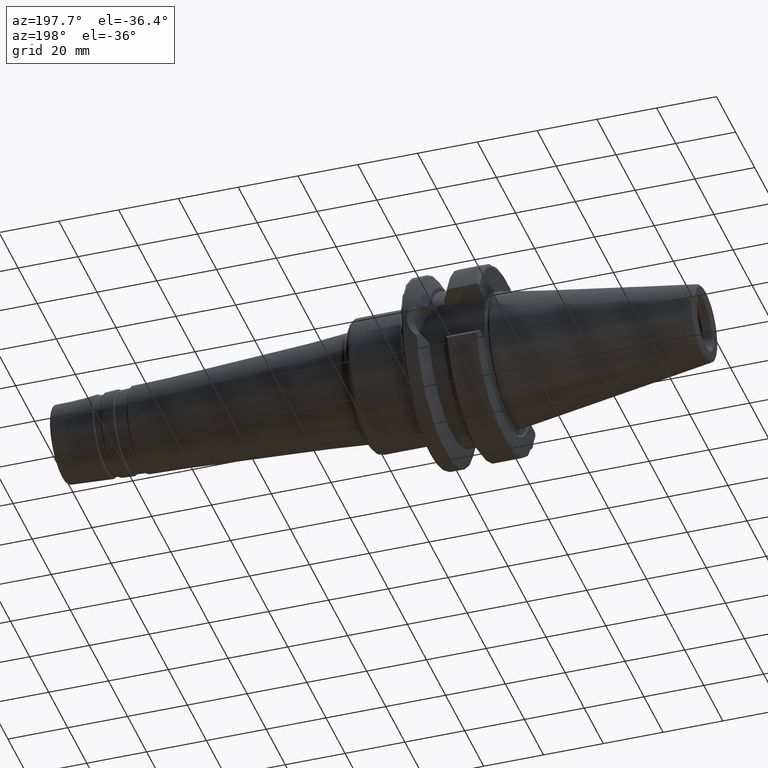
[diagram: clean part render]
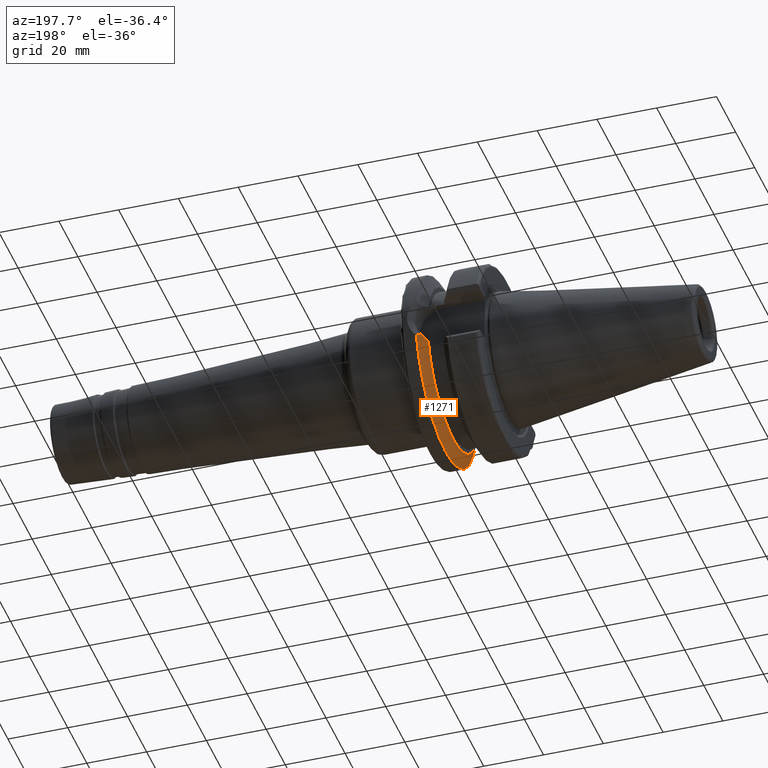
[diagram: same view with one face highlighted and labeled with its STEP entity id]
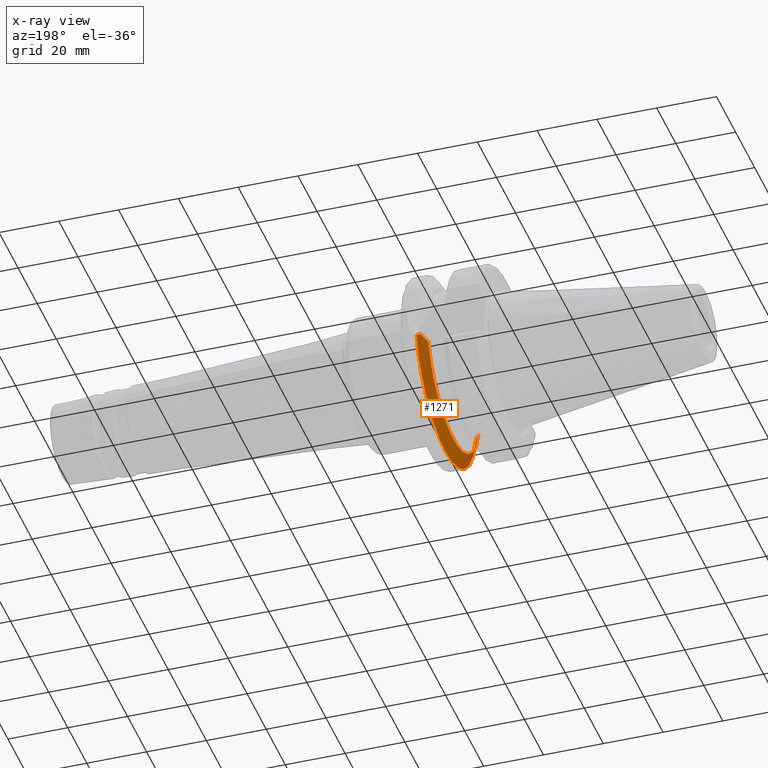
[diagram: x-ray of the same camera — body ghosted, the highlighted face saturated]
A machine part, auxiliary view. The second image highlights one B-rep face of the part: STEP entity #1271.
The next image is the same camera in x-ray: the body ghosted, the highlighted face saturated — about 1% of this face is hidden behind the body in this view.
In plain terms, the highlighted conical surface has half-angle 60.125 deg.
Its self-contained STEP definition (entity closure, byte-faithful):
#27=B_SPLINE_CURVE_WITH_KNOTS('',3,(#2091,#2092,#2093,#2094,#2095,#2096,
#2097,#2098,#2099,#2100,#2101,#2102,#2103),.UNSPECIFIED.,.F.,.F.,(4,3,3,
3,4),(0.,0.0663857987262874,0.104853023511296,0.177953491129426,0.209498394876945),
 .UNSPECIFIED.);
#33=B_SPLINE_CURVE_WITH_KNOTS('',3,(#2163,#2164,#2165,#2166,#2167,#2168),
 .UNSPECIFIED.,.F.,.F.,(4,2,4),(3.3443816511031,3.62699288756974,3.70848737461385),
 .UNSPECIFIED.);
#34=B_SPLINE_CURVE_WITH_KNOTS('',3,(#2172,#2173,#2174,#2175,#2176,#2177),
 .UNSPECIFIED.,.F.,.F.,(4,2,4),(1.4642102789956,1.54570476603971,1.82831600250635),
 .UNSPECIFIED.);
#35=B_SPLINE_CURVE_WITH_KNOTS('',3,(#2178,#2179,#2180,#2181,#2182,#2183,
#2184,#2185,#2186,#2187,#2188,#2189,#2190),.UNSPECIFIED.,.F.,.F.,(4,3,3,
3,4),(1.38777878078145E-17,0.0731680095135469,0.104649820620959,0.171142802075839,
0.209508940919759),.UNSPECIFIED.);
#244=CONICAL_SURFACE('',#1423,29.2970358274569,1.04937921276159);
#287=FACE_OUTER_BOUND('',#372,.T.);
#372=EDGE_LOOP('',(#960,#961,#962,#963,#964,#965));
#469=CIRCLE('',#1420,31.5000000000001);
#472=CIRCLE('',#1424,27.0940716549138);
#549=VERTEX_POINT('',#2089);
#550=VERTEX_POINT('',#2090);
#556=VERTEX_POINT('',#2147);
#558=VERTEX_POINT('',#2162);
#559=VERTEX_POINT('',#2169);
#560=VERTEX_POINT('',#2171);
#695=EDGE_CURVE('',#549,#550,#27,.T.);
#702=EDGE_CURVE('',#550,#556,#469,.T.);
#706=EDGE_CURVE('',#549,#558,#33,.T.);
#707=EDGE_CURVE('',#558,#559,#472,.T.);
#708=EDGE_CURVE('',#559,#560,#34,.T.);
#709=EDGE_CURVE('',#556,#560,#35,.T.);
#960=ORIENTED_EDGE('',*,*,#695,.F.);
#961=ORIENTED_EDGE('',*,*,#706,.T.);
#962=ORIENTED_EDGE('',*,*,#707,.T.);
#963=ORIENTED_EDGE('',*,*,#708,.T.);
#964=ORIENTED_EDGE('',*,*,#709,.F.);
#965=ORIENTED_EDGE('',*,*,#702,.F.);
#1271=ADVANCED_FACE('',(#287),#244,.T.);
#1420=AXIS2_PLACEMENT_3D('',#2148,#1686,#1687);
#1423=AXIS2_PLACEMENT_3D('',#2161,#1692,#1693);
#1424=AXIS2_PLACEMENT_3D('',#2170,#1694,#1695);
#1686=DIRECTION('center_axis',(1.,0.,0.));
#1687=DIRECTION('ref_axis',(0.,0.,-1.));
#1692=DIRECTION('center_axis',(1.,0.,0.));
#1693=DIRECTION('ref_axis',(0.,1.,0.));
#1694=DIRECTION('center_axis',(1.,0.,0.));
#1695=DIRECTION('ref_axis',(0.,0.,-1.));
#2089=CARTESIAN_POINT('',(20.7197593187301,-29.382324732277,-5.61358863864523));
#2090=CARTESIAN_POINT('',(21.6309636926619,-30.7261128229805,-6.93945176433102));
#2091=CARTESIAN_POINT('Ctrl Pts',(20.7197657819788,-29.3823237299493,-5.61358132195236));
#2092=CARTESIAN_POINT('Ctrl Pts',(20.8148408821884,-29.5238838511283,-5.7546101488345));
#2093=CARTESIAN_POINT('Ctrl Pts',(20.9104055783237,-29.6657166596105,-5.89544203107064));
#2094=CARTESIAN_POINT('Ctrl Pts',(21.0063031067432,-29.8076037972815,-6.03588995803085));
#2095=CARTESIAN_POINT('Ctrl Pts',(21.0618708916131,-29.8898202430217,-6.11727245369445));
#2096=CARTESIAN_POINT('Ctrl Pts',(21.1175496497856,-29.9720546777218,-6.19852652970694));
#2097=CARTESIAN_POINT('Ctrl Pts',(21.1733023497016,-30.0542624823723,-6.27961994688687));
#2098=CARTESIAN_POINT('Ctrl Pts',(21.2792509450996,-30.2104845388214,-6.43372429805168));
#2099=CARTESIAN_POINT('Ctrl Pts',(21.3857145189625,-30.3669699337808,-6.5875976402581));
#2100=CARTESIAN_POINT('Ctrl Pts',(21.4925206651177,-30.5234882138239,-6.74104749484797));
#2101=CARTESIAN_POINT('Ctrl Pts',(21.5386105152909,-30.5910302452167,-6.80726541452524));
#2102=CARTESIAN_POINT('Ctrl Pts',(21.5847636249085,-30.6585782245638,-6.87340481119639));
#2103=CARTESIAN_POINT('Ctrl Pts',(21.6309636926619,-30.7261128229805,-6.93945176433104));
#2147=CARTESIAN_POINT('',(21.6309636926619,30.7261128229805,-6.93945176433102));
#2148=CARTESIAN_POINT('Origin',(21.6309636926619,0.,0.));
#2161=CARTESIAN_POINT('Origin',(20.3654818463309,0.,0.));
#2162=CARTESIAN_POINT('',(19.1,-26.201311395455,-6.89782574439221));
#2163=CARTESIAN_POINT('Ctrl Pts',(20.7197593187301,-29.382324732277,-5.61358863864523));
#2164=CARTESIAN_POINT('Ctrl Pts',(20.3012218741369,-28.558364647748,-6.04376984297407));
#2165=CARTESIAN_POINT('Ctrl Pts',(19.867744184216,-27.7064624084632,-6.39234949299032));
#2166=CARTESIAN_POINT('Ctrl Pts',(19.3406963650697,-26.6728819297428,-6.7486710865604));
#2167=CARTESIAN_POINT('Ctrl Pts',(19.2210929544554,-26.438473693351,-6.82497151762395));
#2168=CARTESIAN_POINT('Ctrl Pts',(19.1,-26.201311395455,-6.89782574439221));
#2169=CARTESIAN_POINT('',(19.1,26.201311395455,-6.89782574439221));
#2170=CARTESIAN_POINT('Origin',(19.1,0.,0.));
#2171=CARTESIAN_POINT('',(20.7197593187301,29.382324732277,-5.61358863864523));
#2172=CARTESIAN_POINT('Ctrl Pts',(19.1,26.201311395455,-6.89782574439221));
#2173=CARTESIAN_POINT('Ctrl Pts',(19.2210929544554,26.438473693351,-6.82497151762395));
#2174=CARTESIAN_POINT('Ctrl Pts',(19.3406963650697,26.6728819297427,-6.74867108656041));
#2175=CARTESIAN_POINT('Ctrl Pts',(19.8677441842159,27.7064624084632,-6.39234949299032));
#2176=CARTESIAN_POINT('Ctrl Pts',(20.3012218741369,28.558364647748,-6.04376984297407));
#2177=CARTESIAN_POINT('Ctrl Pts',(20.7197593187301,29.382324732277,-5.61358863864523));
#2178=CARTESIAN_POINT('Ctrl Pts',(21.6309636926618,30.7261128229805,-6.93945176433104));
#2179=CARTESIAN_POINT('Ctrl Pts',(21.5238086080159,30.5694750524797,-6.78626439474683));
#2180=CARTESIAN_POINT('Ctrl Pts',(21.4169091348659,30.4127664111858,-6.63257916591966));
#2181=CARTESIAN_POINT('Ctrl Pts',(21.310456536906,30.2562241217923,-6.47857776697082));
#2182=CARTESIAN_POINT('Ctrl Pts',(21.2646534516076,30.1888690738994,-6.41231598146896));
#2183=CARTESIAN_POINT('Ctrl Pts',(21.2189325585309,30.1215446447243,-6.34599600137116));
#2184=CARTESIAN_POINT('Ctrl Pts',(21.1733066768474,30.0542689338646,-6.27963381498107));
#2185=CARTESIAN_POINT('Ctrl Pts',(21.0769398924116,29.9121753745297,-6.13946971788114));
#2186=CARTESIAN_POINT('Ctrl Pts',(20.9807965697314,29.7700032858785,-5.99882548575242));
#2187=CARTESIAN_POINT('Ctrl Pts',(20.8850589555166,29.6279802338881,-5.85787328488443));
#2188=CARTESIAN_POINT('Ctrl Pts',(20.8298188005531,29.5460335981308,-5.77654452520884));
#2189=CARTESIAN_POINT('Ctrl Pts',(20.7747129164645,29.4641363179111,-5.69511373443865));
#2190=CARTESIAN_POINT('Ctrl Pts',(20.7197698702457,29.3823300093151,-5.61361800937777));